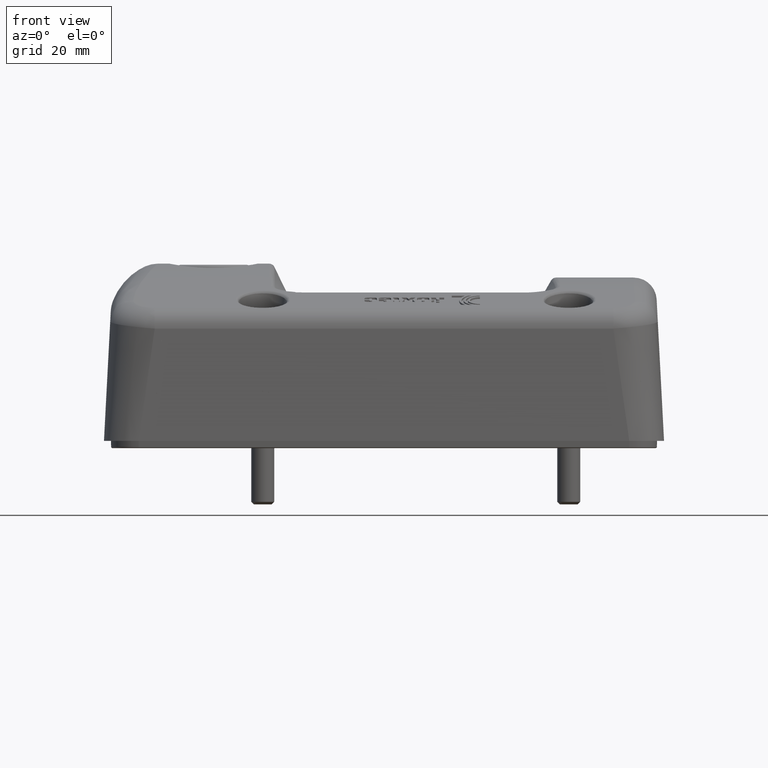
[diagram: clean part render]
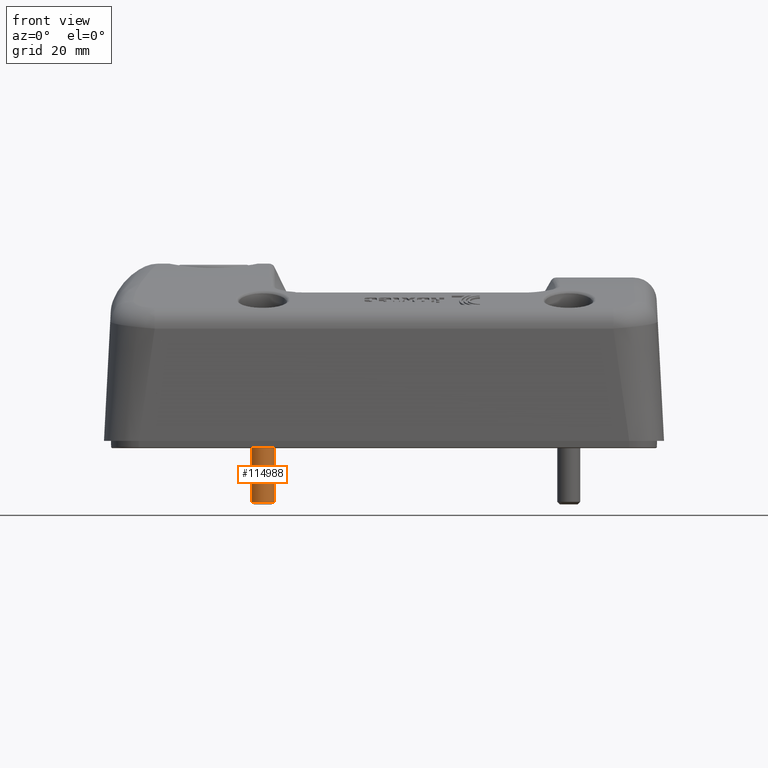
[diagram: same view with one face highlighted and labeled with its STEP entity id]
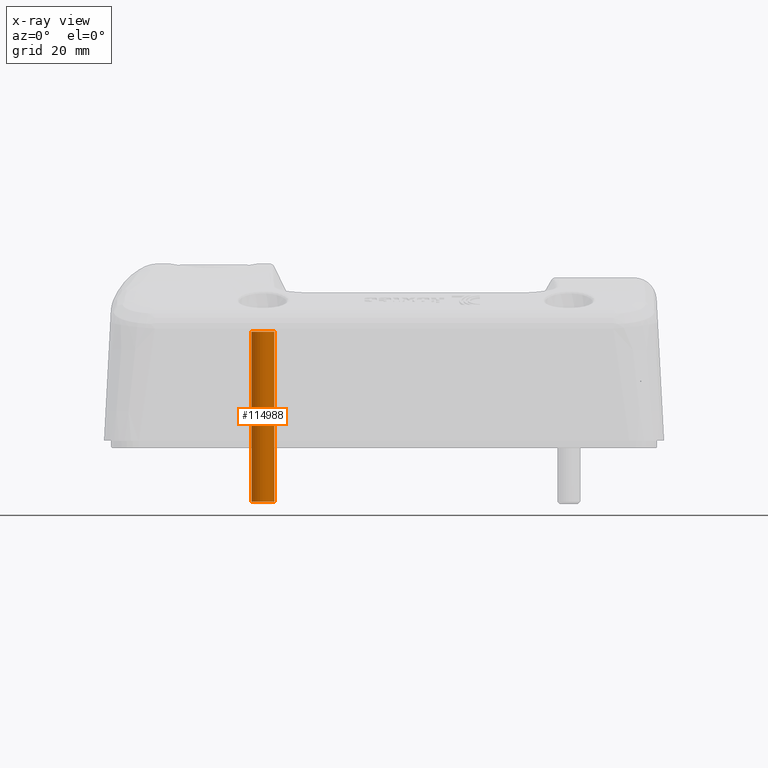
[diagram: x-ray of the same camera — body ghosted, the highlighted face saturated]
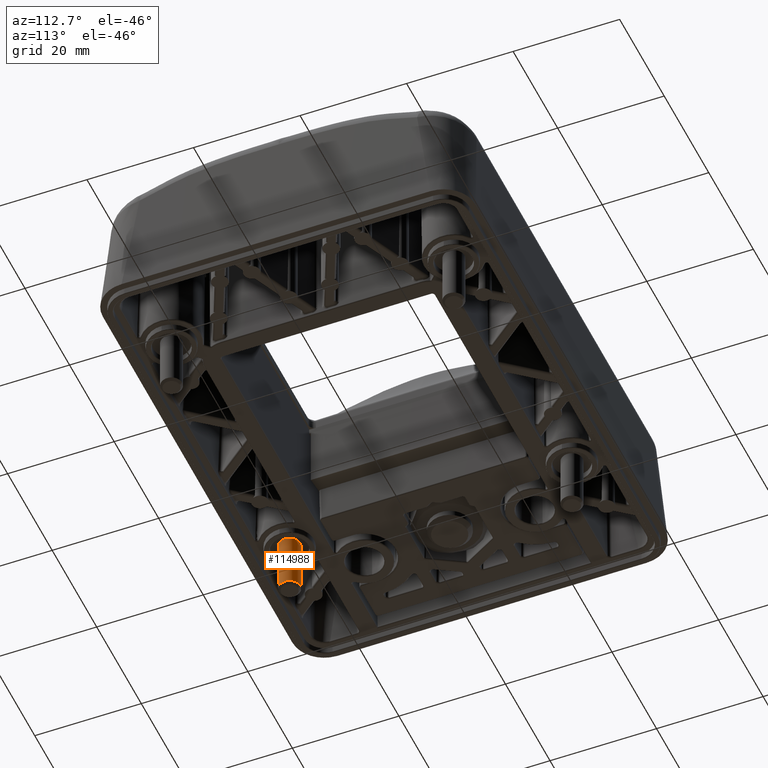
[diagram: same view with one face highlighted and labeled with its STEP entity id]
A machine part, front view. The second image highlights one B-rep face of the part: STEP entity #114988.
The next image is the same camera in x-ray: the body ghosted, the highlighted face saturated — about 0% of this face is hidden behind the body in this view.
A second angle (auxiliary view) of the same face is appended — the face is thin or edge-on in the first view.
In plain terms, the highlighted cylindrical surface (bore or boss wall) has radius 2 mm, axis along (0, 0, -1).
Its self-contained STEP definition (entity closure, byte-faithful):
#114957=CARTESIAN_POINT('',(-26.500000000000004,-24.5,-1.100000000000003));
#114958=VERTEX_POINT('',#114957);
#114959=CARTESIAN_POINT('',(-26.500000000000004,-26.500000000000004,-1.100000000000003));
#114960=DIRECTION('',(0.0,0.0,1.0));
#114961=DIRECTION('',(0.0,-1.0,0.0));
#114962=AXIS2_PLACEMENT_3D('',#114959,#114960,#114961);
#114963=CIRCLE('',#114962,2.000000000000001);
#114964=EDGE_CURVE('',#114958,#114958,#114963,.T.);
#114969=CARTESIAN_POINT('',(-26.500000000000004,-26.500000000000004,-21.0));
#114970=DIRECTION('',(0.0,3.886210E-018,-1.0));
#114971=DIRECTION('',(0.0,1.0,0.0));
#114972=AXIS2_PLACEMENT_3D('',#114969,#114970,#114971);
#114973=CYLINDRICAL_SURFACE('',#114972,2.000000000000001);
#114974=CARTESIAN_POINT('',(-26.500000000000004,-24.5,-30.570585000000001));
#114975=VERTEX_POINT('',#114974);
#114976=CARTESIAN_POINT('',(-26.500000000000004,-26.500000000000004,-30.570585000000001));
#114977=DIRECTION('',(0.0,0.0,-1.0));
#114978=DIRECTION('',(0.0,-1.0,0.0));
#114979=AXIS2_PLACEMENT_3D('',#114976,#114977,#114978);
#114980=CIRCLE('',#114979,2.000000000000001);
#114981=EDGE_CURVE('',#114975,#114975,#114980,.T.);
#114982=ORIENTED_EDGE('',*,*,#114981,.F.);
#114983=EDGE_LOOP('',(#114982));
#114984=FACE_OUTER_BOUND('',#114983,.T.);
#114985=ORIENTED_EDGE('',*,*,#114964,.F.);
#114986=EDGE_LOOP('',(#114985));
#114987=FACE_BOUND('',#114986,.T.);
#114988=ADVANCED_FACE('',(#114984,#114987),#114973,.T.);